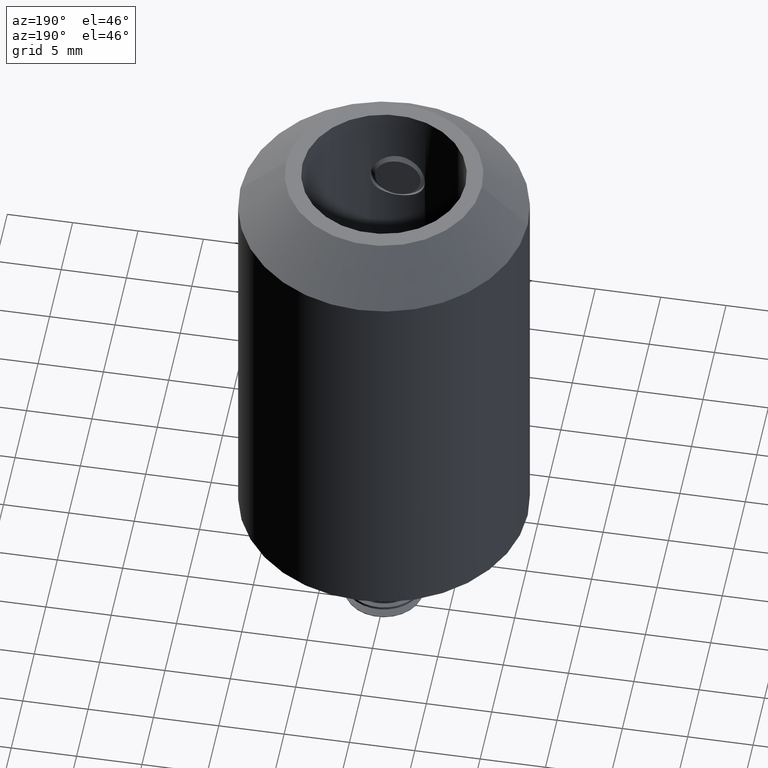
[diagram: clean part render]
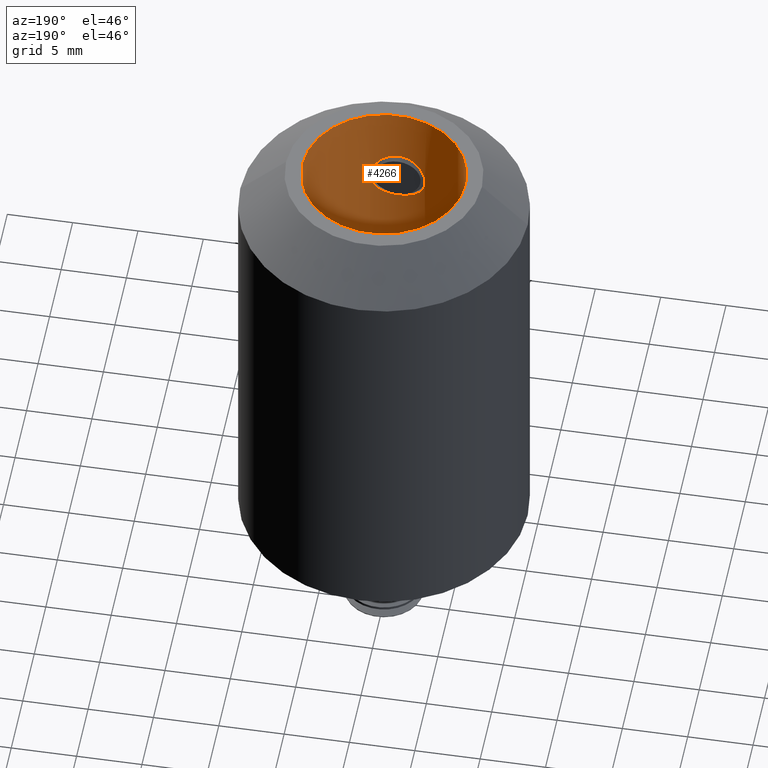
[diagram: same view with one face highlighted and labeled with its STEP entity id]
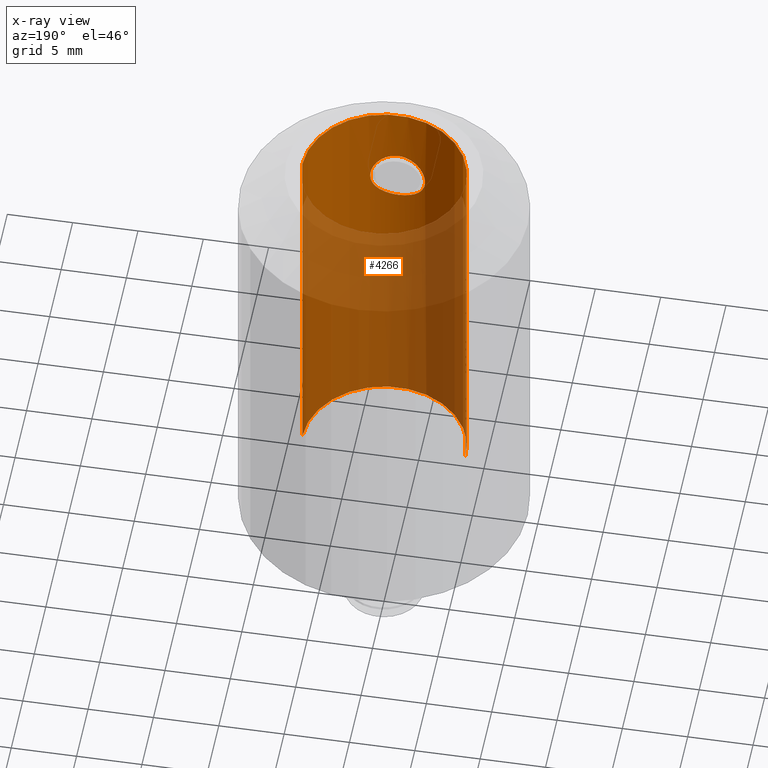
[diagram: x-ray of the same camera — body ghosted, the highlighted face saturated]
A machine part, auxiliary view. The second image highlights one B-rep face of the part: STEP entity #4266.
The next image is the same camera in x-ray: the body ghosted, the highlighted face saturated — about 68% of this face is hidden behind the body in this view.
In plain terms, the highlighted cylindrical surface (partial cylindrical patch) has radius 6.25 mm, axis along (-0, -0, -1).
Its self-contained STEP definition (entity closure, byte-faithful):
#78 = VECTOR ( 'NONE', #8248, 1000.000000000000000 ) ;
#108 = CARTESIAN_POINT ( 'NONE',  ( -6.249941087457022704, -0.02713675213675394507, 17.91659154647436125 ) ) ;
#117 = EDGE_CURVE ( 'NONE', #7957, #18415, #3743, .T. ) ;
#215 = CARTESIAN_POINT ( 'NONE',  ( -6.250000000000000000, -2.266668275202088932E-15, 21.69941239316240456 ) ) ;
#299 = B_SPLINE_CURVE_WITH_KNOTS ( 'NONE', 3,
 ( #8580, #17197, #10429, #20383 ),
 .UNSPECIFIED., .F., .F.,
 ( 4, 4 ),
 ( 0.000000000000000000, 0.0001316155542375974867 ),
 .UNSPECIFIED. ) ;
#320 = B_SPLINE_CURVE_WITH_KNOTS ( 'NONE', 3,
 ( #18417, #8474, #6759, #20200 ),
 .UNSPECIFIED., .F., .F.,
 ( 4, 4 ),
 ( 0.0002498041689422562982, 0.0003613808375801251700 ),
 .UNSPECIFIED. ) ;
#348 = CARTESIAN_POINT ( 'NONE',  ( -6.250000000000000000, 0.000000000000000000, 0.000000000000000000 ) ) ;
#399 = CARTESIAN_POINT ( 'NONE',  ( -6.249999999999998224, -3.650712002666034461E-16, 14.51068119843388970 ) ) ;
#447 = CARTESIAN_POINT ( 'NONE',  ( -6.250000000000000000, -2.266668275202088932E-15, 0.000000000000000000 ) ) ;
#474 = ORIENTED_EDGE ( 'NONE', *, *, #1488, .T. ) ;
#504 = CARTESIAN_POINT ( 'NONE',  ( -6.250000000000000000, 0.000000000000000000, 0.000000000000000000 ) ) ;
#556 = EDGE_CURVE ( 'NONE', #8063, #12401, #3022, .T. ) ;
#621 = CARTESIAN_POINT ( 'NONE',  ( -6.250000000000000000, -2.559876786532332216E-15, 0.000000000000000000 ) ) ;
#646 = VECTOR ( 'NONE', #19002, 1000.000000000000000 ) ;
#647 = ORIENTED_EDGE ( 'NONE', *, *, #19522, .T. ) ;
#735 = AXIS2_PLACEMENT_3D ( 'NONE', #1777, #10003, #16842 ) ;
#752 = CARTESIAN_POINT ( 'NONE',  ( 1.283154409619683634, -6.117951371905980373, 30.16797572121374316 ) ) ;
#768 = ORIENTED_EDGE ( 'NONE', *, *, #18448, .F. ) ;
#771 = CARTESIAN_POINT ( 'NONE',  ( -6.250000000000000000, -2.031294470235149874E-15, 20.28830128205128602 ) ) ;
#786 = VECTOR ( 'NONE', #16347, 1000.000000000000000 ) ;
#822 = CARTESIAN_POINT ( 'NONE',  ( 1.679134496625105388, -6.023525129769473629, 29.79063298823878014 ) ) ;
#833 = ORIENTED_EDGE ( 'NONE', *, *, #1642, .T. ) ;
#849 = VERTEX_POINT ( 'NONE', #6445 ) ;
#867 = CARTESIAN_POINT ( 'NONE',  ( -6.249999999999998224, -3.650712002666034461E-16, 14.51068119843388970 ) ) ;
#915 = VECTOR ( 'NONE', #19245, 1000.000000000000000 ) ;
#945 = VECTOR ( 'NONE', #2682, 1000.000000000000000 ) ;
#977 = CARTESIAN_POINT ( 'NONE',  ( -6.249999999999999112, -0.01874949122127342674, 16.38059750729106412 ) ) ;
#1006 = CARTESIAN_POINT ( 'NONE',  ( -6.250000000000001776, -4.963613070910199987E-16, 10.28032501539279586 ) ) ;
#1028 = VERTEX_POINT ( 'NONE', #17471 ) ;
#1063 = CARTESIAN_POINT ( 'NONE',  ( -6.250000000000000000, 6.407740612628619586E-12, 24.76120711282812081 ) ) ;
#1067 = ORIENTED_EDGE ( 'NONE', *, *, #11978, .F. ) ;
#1077 = ORIENTED_EDGE ( 'NONE', *, *, #21206, .T. ) ;
#1115 = VERTEX_POINT ( 'NONE', #9085 ) ;
#1151 = B_SPLINE_CURVE_WITH_KNOTS ( 'NONE', 3,
 ( #6509, #6288, #20094, #4667 ),
 .UNSPECIFIED., .F., .F.,
 ( 4, 4 ),
 ( 0.0006085833851632783302, 0.0007389834457091191576 ),
 .UNSPECIFIED. ) ;
#1224 = ORIENTED_EDGE ( 'NONE', *, *, #20566, .T. ) ;
#1265 = DIRECTION ( 'NONE',  ( 0.000000000000000000, 0.000000000000000000, 1.000000000000000000 ) ) ;
#1299 = VERTEX_POINT ( 'NONE', #16624 ) ;
#1312 = CARTESIAN_POINT ( 'NONE',  ( -6.250000000000000000, -0.009247728742926933712, 23.31127304138054868 ) ) ;
#1351 = DIRECTION ( 'NONE',  ( -0.000000000000000000, -0.000000000000000000, -1.000000000000000000 ) ) ;
#1371 = CARTESIAN_POINT ( 'NONE',  ( -6.250000000000000000, -1.942524920933333049E-15, 18.80934829059829383 ) ) ;
#1383 = VECTOR ( 'NONE', #8362, 1000.000000000000000 ) ;
#1397 = CARTESIAN_POINT ( 'NONE',  ( -1.389530664248857628, -6.094381485851283031, 26.91959552000053790 ) ) ;
#1411 = EDGE_CURVE ( 'NONE', #9058, #19912, #7722, .T. ) ;
#1468 = CARTESIAN_POINT ( 'NONE',  ( -6.250000000000000000, -4.206158092992778180E-13, 14.79426683218754235 ) ) ;
#1488 = EDGE_CURVE ( 'NONE', #6384, #5884, #16204, .T. ) ;
#1520 = ORIENTED_EDGE ( 'NONE', *, *, #11545, .F. ) ;
#1611 = CARTESIAN_POINT ( 'NONE',  ( -6.249941087457022704, -0.02713675213675362588, 14.66018129006410398 ) ) ;
#1641 = B_SPLINE_CURVE_WITH_KNOTS ( 'NONE', 3,
 ( #12127, #5381, #8798, #10513 ),
 .UNSPECIFIED., .F., .F.,
 ( 4, 4 ),
 ( 0.000000000000000000, 0.0001370445804128096496 ),
 .UNSPECIFIED. ) ;
#1642 = EDGE_CURVE ( 'NONE', #19912, #2317, #9151, .T. ) ;
#1643 = VERTEX_POINT ( 'NONE', #16226 ) ;
#1730 = EDGE_LOOP ( 'NONE', ( #16747, #5443, #2215, #16729, #14328, #833, #1067, #1077, #15503, #9437, #10175, #10506, #13694, #12344, #15625, #7263, #9112, #10553, #21851, #2907, #19128, #15333, #11833, #3174, #2177, #17838, #21165, #12815, #13670, #1840, #18570, #6623, #11304, #13397, #16043, #768, #474, #13451, #8349, #18410, #647, #7110, #9084, #13492, #14574, #3400, #5780, #4946, #1520, #3608, #12853, #5785, #12676, #9108, #4041, #2925, #13518, #20733, #7739, #1224, #4658, #17568, #3137 ) ) ;
#1755 = CARTESIAN_POINT ( 'NONE',  ( -6.250000000000000000, -2.266668275202088932E-15, 22.13360042735043720 ) ) ;
#1776 = CARTESIAN_POINT ( 'NONE',  ( -6.250000000000000000, -0.01763766002864426696, 9.506392982924907642 ) ) ;
#1777 = CARTESIAN_POINT ( 'NONE',  ( 0.000000000000000000, 0.000000000000000000, 5.499999999999998224 ) ) ;
#1809 = EDGE_CURVE ( 'NONE', #4010, #3440, #12775, .T. ) ;
#1819 = CARTESIAN_POINT ( 'NONE',  ( -6.250000000000000000, -4.204135801831208538E-13, 16.42247196039267720 ) ) ;
#1840 = ORIENTED_EDGE ( 'NONE', *, *, #21550, .T. ) ;
#1871 = ORIENTED_EDGE ( 'NONE', *, *, #117, .F. ) ;
#2022 = VECTOR ( 'NONE', #18878, 1000.000000000000000 ) ;
#2151 = CARTESIAN_POINT ( 'NONE',  ( -6.250000000000000000, -1.280788280683425470E-15, 12.37793803418803407 ) ) ;
#2153 = CARTESIAN_POINT ( 'NONE',  ( -6.250000000000000000, 0.000000000000000000, 0.000000000000000000 ) ) ;
#2177 = ORIENTED_EDGE ( 'NONE', *, *, #21735, .T. ) ;
#2215 = ORIENTED_EDGE ( 'NONE', *, *, #15102, .T. ) ;
#2234 = CARTESIAN_POINT ( 'NONE',  ( -6.249999999999998224, -0.01873701217901987959, 14.55798311715569682 ) ) ;
#2275 = CARTESIAN_POINT ( 'NONE',  ( -6.250000000000000000, 0.000000000000000000, 5.499999999999998224 ) ) ;
#2292 = CARTESIAN_POINT ( 'NONE',  ( -6.249985271916317586, -0.01356837606837855807, 24.64820212339743932 ) ) ;
#2317 = VERTEX_POINT ( 'NONE', #3494 ) ;
#2381 = CARTESIAN_POINT ( 'NONE',  ( -6.250000000000000000, -1.361487870957804294E-15, 0.000000000000000000 ) ) ;
#2428 = EDGE_CURVE ( 'NONE', #17449, #12034, #19895, .T. ) ;
#2440 = CARTESIAN_POINT ( 'NONE',  ( 1.281697500500012632, -6.118258615967614666, 26.83090112562079455 ) ) ;
#2441 = CARTESIAN_POINT ( 'NONE',  ( -6.249943101731514794, -0.02667283895925359402, 16.23718278503525880 ) ) ;
#2458 = CARTESIAN_POINT ( 'NONE',  ( -6.250000000000000000, -1.152917720331509549E-15, 15.30872556765992698 ) ) ;
#2487 = EDGE_CURVE ( 'NONE', #12399, #11754, #8846, .T. ) ;
#2532 = CARTESIAN_POINT ( 'NONE',  ( -6.250000000000000000, 0.000000000000000000, 0.000000000000000000 ) ) ;
#2537 = VECTOR ( 'NONE', #5648, 1000.000000000000000 ) ;
#2583 = CARTESIAN_POINT ( 'NONE',  ( -6.250000000000000000, 0.000000000000000000, 0.000000000000000000 ) ) ;
#2606 = VECTOR ( 'NONE', #1351, 1000.000000000000000 ) ;
#2626 = CARTESIAN_POINT ( 'NONE',  ( -6.249941087457022704, -0.02713675213675320608, 10.40946347489316359 ) ) ;
#2632 = CARTESIAN_POINT ( 'NONE',  ( -6.249999999999998224, -0.01763766002864461738, 16.99613657266850453 ) ) ;
#2682 = DIRECTION ( 'NONE',  ( -0.000000000000000000, -0.000000000000000000, -1.000000000000000000 ) ) ;
#2798 = CARTESIAN_POINT ( 'NONE',  ( -1.991178804980828332, -5.924589297797766996, 27.81891842917154634 ) ) ;
#2818 = LINE ( 'NONE', #5009, #4136 ) ;
#2870 = CARTESIAN_POINT ( 'NONE',  ( -0.5470025092208135042, -6.227485096039450774, 26.46782871189566677 ) ) ;
#2907 = ORIENTED_EDGE ( 'NONE', *, *, #11818, .F. ) ;
#2925 = ORIENTED_EDGE ( 'NONE', *, *, #4108, .F. ) ;
#3019 = CARTESIAN_POINT ( 'NONE',  ( -4.681114982632936812E-15, -6.250000000000000000, 26.40000000000000568 ) ) ;
#3022 = LINE ( 'NONE', #3732, #646 ) ;
#3035 = CARTESIAN_POINT ( 'NONE',  ( -6.250000000000000000, -2.031294470235149874E-15, 20.38327991452992194 ) ) ;
#3095 = CARTESIAN_POINT ( 'NONE',  ( -1.820502482735359751, -5.979507314787017691, 29.55562087771018298 ) ) ;
#3137 = ORIENTED_EDGE ( 'NONE', *, *, #21116, .F. ) ;
#3141 = CARTESIAN_POINT ( 'NONE',  ( 6.250000000000000000, 7.654042494670957606E-16, 35.00000000000000000 ) ) ;
#3174 = ORIENTED_EDGE ( 'NONE', *, *, #5834, .T. ) ;
#3177 = VERTEX_POINT ( 'NONE', #867 ) ;
#3183 = VERTEX_POINT ( 'NONE', #3141 ) ;
#3352 = CARTESIAN_POINT ( 'NONE',  ( 6.250000000000000000, 7.654042494670957606E-16, 0.000000000000000000 ) ) ;
#3400 = ORIENTED_EDGE ( 'NONE', *, *, #14368, .T. ) ;
#3440 = VERTEX_POINT ( 'NONE', #4909 ) ;
#3453 = CARTESIAN_POINT ( 'NONE',  ( -0.2769699878207707577, -6.245347119848571715, 30.58627021255417588 ) ) ;
#3482 = CARTESIAN_POINT ( 'NONE',  ( -6.249987420524911741, -0.01257866499286665329, 21.04769291354087812 ) ) ;
#3494 = CARTESIAN_POINT ( 'NONE',  ( -6.250000000000000000, -5.396777249806576637E-13, 9.723829541258805165 ) ) ;
#3608 = ORIENTED_EDGE ( 'NONE', *, *, #5303, .T. ) ;
#3676 = B_SPLINE_CURVE_WITH_KNOTS ( 'NONE', 3,
 ( #16668, #13506, #21765, #5071 ),
 .UNSPECIFIED., .F., .F.,
 ( 4, 4 ),
 ( 0.0003203089328097921337, 0.0004341580018001389490 ),
 .UNSPECIFIED. ) ;
#3732 = CARTESIAN_POINT ( 'NONE',  ( -6.250000000000000000, 0.000000000000000000, 0.000000000000000000 ) ) ;
#3743 = B_SPLINE_CURVE_WITH_KNOTS ( 'NONE', 3,
 ( #3019, #14847, #18219, #2870, #4721, #19710, #4582, #16379, #1397, #16529, #6412, #2798, #8139, #19931, #11534, #21633, #7909, #21405, #11250, #12994, #3095, #14914, #6491, #18293, #8215, #9538, #21329, #15127, #18660, #3453, #6634, #21770 ),
 .UNSPECIFIED., .F., .F.,
 ( 4, 2, 2, 2, 2, 2, 2, 2, 2, 2, 2, 2, 2, 2, 2, 4 ),
 ( 1.156100791101205053E-18, 0.0004133772126065348991, 0.0008267544252130689308, 0.001240131637819602691, 0.001653508850426136994, 0.002480263275639197577, 0.002893640488245732313, 0.003307017700852267050, 0.003720394913458801786, 0.004133772126065336089, 0.004547149338671870392, 0.004960526551278404694, 0.005373903763884938997, 0.005787280976491473300, 0.006200658189098008470, 0.006614035401704542773 ),
 .UNSPECIFIED. ) ;
#3785 = VECTOR ( 'NONE', #11748, 1000.000000000000000 ) ;
#3870 = EDGE_CURVE ( 'NONE', #10320, #1028, #1641, .T. ) ;
#4000 = CARTESIAN_POINT ( 'NONE',  ( -6.249987215373157490, -0.01267316380663488160, 24.68655066500394213 ) ) ;
#4001 = CARTESIAN_POINT ( 'NONE',  ( 1.991316365880859918, -5.924544185841607913, 27.81925910369733757 ) ) ;
#4003 = CARTESIAN_POINT ( 'NONE',  ( -6.250000000000000000, -2.031294470235149874E-15, 19.79983974358975019 ) ) ;
#4010 = VERTEX_POINT ( 'NONE', #11619 ) ;
#4030 = VECTOR ( 'NONE', #1265, 1000.000000000000000 ) ;
#4041 = ORIENTED_EDGE ( 'NONE', *, *, #13833, .T. ) ;
#4108 = EDGE_CURVE ( 'NONE', #13218, #16264, #12209, .T. ) ;
#4136 = VECTOR ( 'NONE', #18294, 1000.000000000000000 ) ;
#4144 = CARTESIAN_POINT ( 'NONE',  ( 1.992013863949607888, -5.924313930899341329, 29.17894508561565559 ) ) ;
#4174 = CARTESIAN_POINT ( 'NONE',  ( -6.250000000000000000, -2.266668275202088932E-15, 22.22857905982906956 ) ) ;
#4217 = CARTESIAN_POINT ( 'NONE',  ( 1.388283807668770686, -6.094680465868980157, 30.08160507440587139 ) ) ;
#4230 = EDGE_CURVE ( 'NONE', #4779, #13197, #6646, .T. ) ;
#4266 = ADVANCED_FACE ( 'NONE', ( #18524, #11692 ), #15106, .F. ) ;
#4352 = LINE ( 'NONE', #15830, #21005 ) ;
#4403 = CARTESIAN_POINT ( 'NONE',  ( -6.250000000000000000, -0.01763766002864251836, 10.32049554702747152 ) ) ;
#4500 = CARTESIAN_POINT ( 'NONE',  ( -6.249999999999998224, -0.01847626381544652252, 10.49809395117142508 ) ) ;
#4532 = LINE ( 'NONE', #6802, #7424 ) ;
#4550 = LINE ( 'NONE', #20028, #10112 ) ;
#4582 = CARTESIAN_POINT ( 'NONE',  ( -1.055134711992556706, -6.161379976940708936, 26.67916379490898393 ) ) ;
#4658 = ORIENTED_EDGE ( 'NONE', *, *, #9623, .F. ) ;
#4667 = CARTESIAN_POINT ( 'NONE',  ( -6.249941087457022704, -0.02713675213675333445, 11.71202757745726331 ) ) ;
#4721 = CARTESIAN_POINT ( 'NONE',  ( -0.6809573174596500467, -6.214112147208842529, 26.50871496874487221 ) ) ;
#4766 = EDGE_CURVE ( 'NONE', #15368, #14835, #4352, .T. ) ;
#4779 = VERTEX_POINT ( 'NONE', #771 ) ;
#4909 = CARTESIAN_POINT ( 'NONE',  ( -6.250000000000000000, -1.942524920933333049E-15, 19.48776709401709795 ) ) ;
#4946 = ORIENTED_EDGE ( 'NONE', *, *, #17718, .T. ) ;
#4966 = CARTESIAN_POINT ( 'NONE',  ( -6.250000000000000000, 4.404129174523895018E-12, 21.11881288291180780 ) ) ;
#5009 = CARTESIAN_POINT ( 'NONE',  ( -6.250000000000000000, -2.266668275202088932E-15, 0.000000000000000000 ) ) ;
#5071 = CARTESIAN_POINT ( 'NONE',  ( -6.249985271916317586, -0.01356837606837855807, 24.64820212339743932 ) ) ;
#5107 = EDGE_LOOP ( 'NONE', ( #1871, #7141 ) ) ;
#5114 = EDGE_CURVE ( 'NONE', #20667, #12776, #16285, .T. ) ;
#5194 = EDGE_CURVE ( 'NONE', #4779, #5884, #7315, .T. ) ;
#5303 = EDGE_CURVE ( 'NONE', #1299, #12776, #2818, .T. ) ;
#5316 = CARTESIAN_POINT ( 'NONE',  ( -6.249943906154056705, -0.02648757015918927829, 9.550765008672152945 ) ) ;
#5381 = CARTESIAN_POINT ( 'NONE',  ( -6.249945055681250139, -0.02622281934493954705, 17.96272777242339203 ) ) ;
#5387 = CARTESIAN_POINT ( 'NONE',  ( -6.249941087457022704, -0.02713675213675312281, 9.595360910790597941 ) ) ;
#5400 = LINE ( 'NONE', #504, #915 ) ;
#5443 = ORIENTED_EDGE ( 'NONE', *, *, #14534, .T. ) ;
#5479 = EDGE_CURVE ( 'NONE', #12575, #19817, #17085, .T. ) ;
#5500 = CIRCLE ( 'NONE', #735, 6.250000000000000000 ) ;
#5571 = VECTOR ( 'NONE', #18879, 1000.000000000000000 ) ;
#5581 = LINE ( 'NONE', #17011, #15893 ) ;
#5623 = CARTESIAN_POINT ( 'NONE',  ( -6.249943101731514794, -0.02667283895925342749, 14.60897765683013283 ) ) ;
#5643 = CARTESIAN_POINT ( 'NONE',  ( -6.249985271916317586, -0.01356837606837819725, 21.01124131944445139 ) ) ;
#5648 = DIRECTION ( 'NONE',  ( -0.000000000000000000, -0.000000000000000000, -1.000000000000000000 ) ) ;
#5748 = CARTESIAN_POINT ( 'NONE',  ( 1.677601154600719013, -6.023902963499859098, 27.20781212300785867 ) ) ;
#5779 = CARTESIAN_POINT ( 'NONE',  ( -6.250000000000000000, -3.662496348544709915E-14, 23.27535668402721214 ) ) ;
#5780 = ORIENTED_EDGE ( 'NONE', *, *, #21706, .F. ) ;
#5785 = ORIENTED_EDGE ( 'NONE', *, *, #14671, .T. ) ;
#5818 = CARTESIAN_POINT ( 'NONE',  ( 0.6807774074885170057, -6.214132139573580460, 26.50865275162994905 ) ) ;
#5834 = EDGE_CURVE ( 'NONE', #10327, #12854, #16553, .T. ) ;
#5881 = EDGE_CURVE ( 'NONE', #14880, #17189, #9960, .T. ) ;
#5884 = VERTEX_POINT ( 'NONE', #4003 ) ;
#6171 = CARTESIAN_POINT ( 'NONE',  ( -6.250000000000000000, -2.556980709523919149E-16, 9.466222451290228435 ) ) ;
#6251 = CARTESIAN_POINT ( 'NONE',  ( -6.250000000000000000, -3.662496348544709915E-14, 23.27535668402721214 ) ) ;
#6266 = CARTESIAN_POINT ( 'NONE',  ( -6.250000000000000000, -5.396777249806576637E-13, 9.723829541258805165 ) ) ;
#6288 = CARTESIAN_POINT ( 'NONE',  ( -6.250000000000000000, -0.01763766002864407614, 11.62305964959157123 ) ) ;
#6292 = VERTEX_POINT ( 'NONE', #215 ) ;
#6332 = DIRECTION ( 'NONE',  ( 0.000000000000000000, 0.000000000000000000, 1.000000000000000000 ) ) ;
#6373 = VECTOR ( 'NONE', #6570, 1000.000000000000000 ) ;
#6380 = LINE ( 'NONE', #15006, #15116 ) ;
#6384 = VERTEX_POINT ( 'NONE', #17841 ) ;
#6412 = CARTESIAN_POINT ( 'NONE',  ( -1.833634788654213477, -5.975992719688997035, 27.44054541392978663 ) ) ;
#6445 = CARTESIAN_POINT ( 'NONE',  ( -6.249985271916317586, -0.01356837606837855807, 24.64820212339743932 ) ) ;
#6491 = CARTESIAN_POINT ( 'NONE',  ( -1.581024548620139969, -6.047541939429930125, 29.88889684463689989 ) ) ;
#6509 = CARTESIAN_POINT ( 'NONE',  ( -6.250000000000000000, 3.324604317973128831E-17, 11.58288911795689735 ) ) ;
#6546 = LINE ( 'NONE', #2583, #20796 ) ;
#6570 = DIRECTION ( 'NONE',  ( -0.000000000000000000, -0.000000000000000000, -1.000000000000000000 ) ) ;
#6612 = VERTEX_POINT ( 'NONE', #15119 ) ;
#6623 = ORIENTED_EDGE ( 'NONE', *, *, #12944, .F. ) ;
#6634 = CARTESIAN_POINT ( 'NONE',  ( -0.1377617610087926991, -6.250000000000001776, 30.60000000000001208 ) ) ;
#6646 = LINE ( 'NONE', #15281, #5571 ) ;
#6759 = CARTESIAN_POINT ( 'NONE',  ( -6.249987163406165891, -0.01269710130100408507, 20.97384982570186196 ) ) ;
#6802 = CARTESIAN_POINT ( 'NONE',  ( -6.250000000000000000, 0.000000000000000000, 0.000000000000000000 ) ) ;
#7110 = ORIENTED_EDGE ( 'NONE', *, *, #21685, .F. ) ;
#7121 = CARTESIAN_POINT ( 'NONE',  ( -6.249985271916317586, -0.01356837606837843317, 23.38570713141026047 ) ) ;
#7122 = VERTEX_POINT ( 'NONE', #17362 ) ;
#7123 = DIRECTION ( 'NONE',  ( 0.000000000000000000, 0.000000000000000000, 1.000000000000000000 ) ) ;
#7141 = ORIENTED_EDGE ( 'NONE', *, *, #8406, .F. ) ;
#7163 = DIRECTION ( 'NONE',  ( -0.000000000000000000, -0.000000000000000000, -1.000000000000000000 ) ) ;
#7256 = CARTESIAN_POINT ( 'NONE',  ( -6.250000000000000000, -0.01847626381545804108, 17.17373497681246519 ) ) ;
#7263 = ORIENTED_EDGE ( 'NONE', *, *, #17515, .T. ) ;
#7315 = LINE ( 'NONE', #7684, #11557 ) ;
#7424 = VECTOR ( 'NONE', #7163, 1000.000000000000000 ) ;
#7443 = EDGE_CURVE ( 'NONE', #1115, #10508, #299, .T. ) ;
#7509 = B_SPLINE_CURVE_WITH_KNOTS ( 'NONE', 3,
 ( #16475, #9787, #21579, #18387 ),
 .UNSPECIFIED., .F., .F.,
 ( 4, 4 ),
 ( 0.000000000000000000, 0.0001492847478538085189 ),
 .UNSPECIFIED. ) ;
#7542 = CARTESIAN_POINT ( 'NONE',  ( 0.2754539012555117239, -6.249999999999999112, 30.59999999999999432 ) ) ;
#7633 = CARTESIAN_POINT ( 'NONE',  ( -6.249941087457022704, -0.02713675213675378894, 16.28838641826922995 ) ) ;
#7684 = CARTESIAN_POINT ( 'NONE',  ( -6.250000000000000000, 0.000000000000000000, 0.000000000000000000 ) ) ;
#7722 = B_SPLINE_CURVE_WITH_KNOTS ( 'NONE', 3,
 ( #11919, #1776, #5316, #5387 ),
 .UNSPECIFIED., .F., .F.,
 ( 4, 4 ),
 ( 0.0006085833851632583809, 0.0007389834457091056050 ),
 .UNSPECIFIED. ) ;
#7724 = EDGE_CURVE ( 'NONE', #8063, #12399, #13720, .T. ) ;
#7739 = ORIENTED_EDGE ( 'NONE', *, *, #12325, .T. ) ;
#7784 = DIRECTION ( 'NONE',  ( 0.000000000000000000, 0.000000000000000000, 1.000000000000000000 ) ) ;
#7826 = VECTOR ( 'NONE', #19197, 1000.000000000000000 ) ;
#7873 = EDGE_CURVE ( 'NONE', #12575, #6612, #21721, .T. ) ;
#7909 = CARTESIAN_POINT ( 'NONE',  ( -2.086156781590802645, -5.891627256037642368, 28.77737804672436894 ) ) ;
#7957 = VERTEX_POINT ( 'NONE', #20476 ) ;
#8063 = VERTEX_POINT ( 'NONE', #21137 ) ;
#8139 = CARTESIAN_POINT ( 'NONE',  ( -2.032047115787772640, -5.910508611355727027, 27.95231474863934196 ) ) ;
#8152 = VERTEX_POINT ( 'NONE', #1063 ) ;
#8211 = CARTESIAN_POINT ( 'NONE',  ( -6.250000000000000000, -2.559876786532332216E-15, 25.68851495726496381 ) ) ;
#8215 = CARTESIAN_POINT ( 'NONE',  ( -1.282716395517583097, -6.118045133621313525, 30.16832026092160746 ) ) ;
#8219 = CARTESIAN_POINT ( 'NONE',  ( -6.249941087457022704, -0.02713675213675370568, 15.45774739583333535 ) ) ;
#8248 = DIRECTION ( 'NONE',  ( -0.000000000000000000, -0.000000000000000000, -1.000000000000000000 ) ) ;
#8349 = ORIENTED_EDGE ( 'NONE', *, *, #4230, .T. ) ;
#8362 = DIRECTION ( 'NONE',  ( -0.000000000000000000, -0.000000000000000000, -1.000000000000000000 ) ) ;
#8406 = EDGE_CURVE ( 'NONE', #18415, #7957, #10018, .T. ) ;
#8474 = CARTESIAN_POINT ( 'NONE',  ( -6.250000000000000000, -0.009247728742931015516, 20.93680722941473249 ) ) ;
#8544 = B_SPLINE_CURVE_WITH_KNOTS ( 'NONE', 3,
 ( #1611, #21774, #16678, #1468 ),
 .UNSPECIFIED., .F., .F.,
 ( 4, 4 ),
 ( 0.000000000000000000, 0.0001370445804128000815 ),
 .UNSPECIFIED. ) ;
#8553 = VERTEX_POINT ( 'NONE', #1755 ) ;
#8580 = CARTESIAN_POINT ( 'NONE',  ( -6.249941087457022704, -0.02713675213675333445, 11.71202757745726331 ) ) ;
#8590 = DIRECTION ( 'NONE',  ( 0.000000000000000000, 0.000000000000000000, 1.000000000000000000 ) ) ;
#8647 = EDGE_CURVE ( 'NONE', #18711, #13197, #5400, .T. ) ;
#8764 = CARTESIAN_POINT ( 'NONE',  ( -6.250000000000000000, -2.130823964906883901E-15, 20.60037393162393471 ) ) ;
#8789 = LINE ( 'NONE', #15064, #1383 ) ;
#8798 = CARTESIAN_POINT ( 'NONE',  ( -6.250000000000000888, -0.01874949122127799600, 18.00880263549619897 ) ) ;
#8846 = B_SPLINE_CURVE_WITH_KNOTS ( 'NONE', 3,
 ( #10762, #20837, #7256, #12510 ),
 .UNSPECIFIED., .F., .F.,
 ( 4, 4 ),
 ( 0.000000000000000000, 0.0001316155542375947490 ),
 .UNSPECIFIED. ) ;
#8861 = VERTEX_POINT ( 'NONE', #4174 ) ;
#8909 = VECTOR ( 'NONE', #21109, 1000.000000000000000 ) ;
#9035 = EDGE_CURVE ( 'NONE', #19506, #11754, #19925, .T. ) ;
#9037 = CARTESIAN_POINT ( 'NONE',  ( 0.000000000000000000, 0.000000000000000000, 35.00000000000000000 ) ) ;
#9058 = VERTEX_POINT ( 'NONE', #6171 ) ;
#9084 = ORIENTED_EDGE ( 'NONE', *, *, #21382, .T. ) ;
#9085 = CARTESIAN_POINT ( 'NONE',  ( -6.249941087457022704, -0.02713675213675333445, 11.71202757745726331 ) ) ;
#9108 = ORIENTED_EDGE ( 'NONE', *, *, #7873, .T. ) ;
#9111 = CARTESIAN_POINT ( 'NONE',  ( -6.250000000000000000, 0.000000000000000000, 0.000000000000000000 ) ) ;
#9112 = ORIENTED_EDGE ( 'NONE', *, *, #11191, .F. ) ;
#9117 = CARTESIAN_POINT ( 'NONE',  ( -3.232964290594066295E-15, -6.250000000000000000, 30.59999999999999432 ) ) ;
#9151 = B_SPLINE_CURVE_WITH_KNOTS ( 'NONE', 3,
 ( #14623, #21475, #18066, #6266 ),
 .UNSPECIFIED., .F., .F.,
 ( 4, 4 ),
 ( 0.000000000000000000, 0.0001316155542376013898 ),
 .UNSPECIFIED. ) ;
#9174 = LINE ( 'NONE', #2532, #18121 ) ;
#9249 = VECTOR ( 'NONE', #7123, 1000.000000000000000 ) ;
#9262 = CARTESIAN_POINT ( 'NONE',  ( 1.054796682869352464, -6.161431727484913523, 26.67899931547247760 ) ) ;
#9278 = CARTESIAN_POINT ( 'NONE',  ( -6.250000000000000000, -1.942524920933333049E-15, 18.90432692307692619 ) ) ;
#9402 = CARTESIAN_POINT ( 'NONE',  ( 2.099981086174654621, -5.886644157591924831, 28.36133460682143337 ) ) ;
#9437 = ORIENTED_EDGE ( 'NONE', *, *, #20960, .F. ) ;
#9455 = VERTEX_POINT ( 'NONE', #14160 ) ;
#9468 = EDGE_CURVE ( 'NONE', #10327, #18558, #20717, .T. ) ;
#9518 = VECTOR ( 'NONE', #14758, 1000.000000000000000 ) ;
#9538 = CARTESIAN_POINT ( 'NONE',  ( -1.055817361523854192, -6.161256958402389294, 30.32041301452059656 ) ) ;
#9605 = CARTESIAN_POINT ( 'NONE',  ( -6.249941087457022704, -0.02713675213675320608, 10.40946347489316359 ) ) ;
#9623 = EDGE_CURVE ( 'NONE', #7122, #8152, #16999, .T. ) ;
#9697 = EDGE_CURVE ( 'NONE', #4010, #14835, #17789, .T. ) ;
#9787 = CARTESIAN_POINT ( 'NONE',  ( -6.249946148398608514, -0.02597115256177571357, 15.50798380961689382 ) ) ;
#9838 = VECTOR ( 'NONE', #15676, 1000.000000000000000 ) ;
#9844 = CARTESIAN_POINT ( 'NONE',  ( -6.250000000000000000, -2.395787619641094577E-15, 0.000000000000000000 ) ) ;
#9908 = EDGE_CURVE ( 'NONE', #3183, #11881, #20177, .T. ) ;
#9960 = LINE ( 'NONE', #15813, #7826 ) ;
#10003 = DIRECTION ( 'NONE',  ( -0.000000000000000000, -0.000000000000000000, -1.000000000000000000 ) ) ;
#10018 = B_SPLINE_CURVE_WITH_KNOTS ( 'NONE', 3,
 ( #9117, #7542, #14276, #16018, #21042, #752, #4217, #822, #10828, #4144, #15952, #11106, #12578, #9402, #19271, #17715, #4001, #12787, #5748, #14204, #2440, #9262, #21184, #5818, #21113, #17643, #12651, #14345 ),
 .UNSPECIFIED., .F., .F.,
 ( 4, 2, 2, 2, 2, 2, 2, 2, 2, 2, 2, 2, 2, 4 ),
 ( 0.006614035401704542773, 0.007440580918172907954, 0.007853853676407090978, 0.008267126434641274002, 0.009093671951109631377, 0.009506944709343810931, 0.009920217467577988751, 0.01033349022581216831, 0.01074676298404634786, 0.01157330850051469656, 0.01198658125874886918, 0.01239985401698304526, 0.01281312677521721961, 0.01322639953345139396 ),
 .UNSPECIFIED. ) ;
#10112 = VECTOR ( 'NONE', #11698, 1000.000000000000000 ) ;
#10175 = ORIENTED_EDGE ( 'NONE', *, *, #15548, .T. ) ;
#10320 = VERTEX_POINT ( 'NONE', #108 ) ;
#10327 = VERTEX_POINT ( 'NONE', #18568 ) ;
#10395 = B_SPLINE_CURVE_WITH_KNOTS ( 'NONE', 3,
 ( #7633, #21132, #977, #19517 ),
 .UNSPECIFIED., .F., .F.,
 ( 4, 4 ),
 ( 0.000000000000000000, 0.0001370445804128089719 ),
 .UNSPECIFIED. ) ;
#10404 = VECTOR ( 'NONE', #17363, 1000.000000000000000 ) ;
#10429 = CARTESIAN_POINT ( 'NONE',  ( -6.249999999999998224, -0.01847626381545403040, 11.80065805373553545 ) ) ;
#10473 = CARTESIAN_POINT ( 'NONE',  ( -6.249941087457022704, -0.02713675213675394507, 17.91659154647436125 ) ) ;
#10506 = ORIENTED_EDGE ( 'NONE', *, *, #7443, .T. ) ;
#10508 = VERTEX_POINT ( 'NONE', #18254 ) ;
#10513 = CARTESIAN_POINT ( 'NONE',  ( -6.250000000000000000, -4.202026689792545330E-13, 18.05067708859780495 ) ) ;
#10517 = CARTESIAN_POINT ( 'NONE',  ( -6.250000000000000000, 0.000000000000000000, 35.00000000000000000 ) ) ;
#10532 = VERTEX_POINT ( 'NONE', #21671 ) ;
#10553 = ORIENTED_EDGE ( 'NONE', *, *, #14772, .T. ) ;
#10623 = CARTESIAN_POINT ( 'NONE',  ( -6.250000000000000000, -2.366197769873822171E-15, 0.000000000000000000 ) ) ;
#10762 = CARTESIAN_POINT ( 'NONE',  ( -6.249941087457022704, -0.02713675213675386527, 17.08510450053419305 ) ) ;
#10770 = CARTESIAN_POINT ( 'NONE',  ( -6.249941087457022704, -0.02713675213675362588, 14.66018129006410398 ) ) ;
#10828 = CARTESIAN_POINT ( 'NONE',  ( 1.832844012027486924, -5.976256518225836700, 29.56161456346993077 ) ) ;
#10850 = LINE ( 'NONE', #3352, #19260 ) ;
#10865 = VERTEX_POINT ( 'NONE', #14422 ) ;
#10888 = CARTESIAN_POINT ( 'NONE',  ( -6.249941087457022704, -0.02713675213675370568, 15.45774739583333535 ) ) ;
#10924 = VERTEX_POINT ( 'NONE', #17862 ) ;
#11046 = EDGE_CURVE ( 'NONE', #13218, #17189, #13282, .T. ) ;
#11106 = CARTESIAN_POINT ( 'NONE',  ( 2.086020354233161900, -5.891675392019029012, 28.77823449408860768 ) ) ;
#11191 = EDGE_CURVE ( 'NONE', #3177, #13852, #8789, .T. ) ;
#11202 = CARTESIAN_POINT ( 'NONE',  ( -6.250000000000000000, 0.000000000000000000, 0.000000000000000000 ) ) ;
#11221 = AXIS2_PLACEMENT_3D ( 'NONE', #15353, #12118, #12046 ) ;
#11250 = CARTESIAN_POINT ( 'NONE',  ( -1.991998142174518316, -5.924320343051245885, 29.17904070399740490 ) ) ;
#11304 = ORIENTED_EDGE ( 'NONE', *, *, #4766, .T. ) ;
#11397 = VERTEX_POINT ( 'NONE', #19407 ) ;
#11449 = LINE ( 'NONE', #2381, #9838 ) ;
#11513 = EDGE_CURVE ( 'NONE', #13268, #9455, #18659, .T. ) ;
#11534 = CARTESIAN_POINT ( 'NONE',  ( -2.099930759189656104, -5.886662111245453133, 28.36083144935797407 ) ) ;
#11545 = EDGE_CURVE ( 'NONE', #1299, #8861, #5581, .T. ) ;
#11557 = VECTOR ( 'NONE', #14556, 1000.000000000000000 ) ;
#11619 = CARTESIAN_POINT ( 'NONE',  ( -6.250000000000000000, -1.942524920933333049E-15, 19.39278846153846558 ) ) ;
#11656 = VECTOR ( 'NONE', #19117, 1000.000000000000000 ) ;
#11692 = FACE_OUTER_BOUND ( 'NONE', #1730, .T. ) ;
#11698 = DIRECTION ( 'NONE',  ( -0.000000000000000000, -0.000000000000000000, -1.000000000000000000 ) ) ;
#11748 = DIRECTION ( 'NONE',  ( 0.000000000000000000, 0.000000000000000000, 1.000000000000000000 ) ) ;
#11754 = VERTEX_POINT ( 'NONE', #18386 ) ;
#11796 = B_SPLINE_CURVE_WITH_KNOTS ( 'NONE', 3,
 ( #2292, #4000, #12503, #15811 ),
 .UNSPECIFIED., .F., .F.,
 ( 4, 4 ),
 ( 0.000000000000000000, 0.0001135698750731767992 ),
 .UNSPECIFIED. ) ;
#11818 = EDGE_CURVE ( 'NONE', #14869, #13647, #4550, .T. ) ;
#11832 = VERTEX_POINT ( 'NONE', #14868 ) ;
#11833 = ORIENTED_EDGE ( 'NONE', *, *, #9468, .F. ) ;
#11881 = VERTEX_POINT ( 'NONE', #10517 ) ;
#11890 = EDGE_CURVE ( 'NONE', #14899, #16849, #6380, .T. ) ;
#11919 = CARTESIAN_POINT ( 'NONE',  ( -6.250000000000000000, -2.556980709523919149E-16, 9.466222451290228435 ) ) ;
#11947 = CARTESIAN_POINT ( 'NONE',  ( -6.249943101731514794, -0.02667283895925389586, 17.86538791324039011 ) ) ;
#11978 = EDGE_CURVE ( 'NONE', #11832, #2317, #4532, .T. ) ;
#12034 = VERTEX_POINT ( 'NONE', #12419 ) ;
#12046 = DIRECTION ( 'NONE',  ( -1.000000000000000000, 0.000000000000000000, 0.000000000000000000 ) ) ;
#12076 = LINE ( 'NONE', #11202, #945 ) ;
#12077 = CARTESIAN_POINT ( 'NONE',  ( -6.249985271916317586, -0.01356837606837843317, 23.38570713141026047 ) ) ;
#12118 = DIRECTION ( 'NONE',  ( -0.000000000000000000, -0.000000000000000000, -1.000000000000000000 ) ) ;
#12127 = CARTESIAN_POINT ( 'NONE',  ( -6.249941087457022704, -0.02713675213675394507, 17.91659154647436125 ) ) ;
#12209 = LINE ( 'NONE', #13150, #6373 ) ;
#12241 = CARTESIAN_POINT ( 'NONE',  ( -6.250000000000000000, 0.000000000000000000, 0.000000000000000000 ) ) ;
#12325 = EDGE_CURVE ( 'NONE', #14880, #849, #3676, .T. ) ;
#12344 = ORIENTED_EDGE ( 'NONE', *, *, #11890, .T. ) ;
#12357 = CARTESIAN_POINT ( 'NONE',  ( -6.249941087457022704, -0.02713675213675378894, 16.28838641826922995 ) ) ;
#12399 = VERTEX_POINT ( 'NONE', #13358 ) ;
#12401 = VERTEX_POINT ( 'NONE', #1819 ) ;
#12419 = CARTESIAN_POINT ( 'NONE',  ( -6.250000000000000000, 4.404129174523895018E-12, 21.11881288291180780 ) ) ;
#12451 = CARTESIAN_POINT ( 'NONE',  ( -6.250000000000007994, -0.009182073190707589275, 23.45820538507413033 ) ) ;
#12457 = DIRECTION ( 'NONE',  ( -0.000000000000000000, -0.000000000000000000, -1.000000000000000000 ) ) ;
#12503 = CARTESIAN_POINT ( 'NONE',  ( -6.250000000000009770, -0.009547924563101722537, 24.72448105206742142 ) ) ;
#12510 = CARTESIAN_POINT ( 'NONE',  ( -6.250000000000000000, -5.417446971301949701E-13, 17.21357313100239494 ) ) ;
#12575 = VERTEX_POINT ( 'NONE', #5779 ) ;
#12576 = DIRECTION ( 'NONE',  ( -1.000000000000000000, 0.000000000000000000, 0.000000000000000000 ) ) ;
#12578 = CARTESIAN_POINT ( 'NONE',  ( 2.100018874674550950, -5.886630676916387195, 28.63809192433770434 ) ) ;
#12597 = CARTESIAN_POINT ( 'NONE',  ( -6.250000000000000000, -1.280788280683425470E-15, 12.28295940170940170 ) ) ;
#12651 = CARTESIAN_POINT ( 'NONE',  ( 0.1398138339219174853, -6.250000000000001776, 26.40000000000001279 ) ) ;
#12676 = ORIENTED_EDGE ( 'NONE', *, *, #5479, .F. ) ;
#12775 = LINE ( 'NONE', #13293, #3785 ) ;
#12776 = VERTEX_POINT ( 'NONE', #16566 ) ;
#12787 = CARTESIAN_POINT ( 'NONE',  ( 1.833429633678348436, -5.976060114691638780, 27.44003211084209326 ) ) ;
#12815 = ORIENTED_EDGE ( 'NONE', *, *, #2487, .T. ) ;
#12853 = ORIENTED_EDGE ( 'NONE', *, *, #5114, .F. ) ;
#12854 = VERTEX_POINT ( 'NONE', #15169 ) ;
#12856 = LINE ( 'NONE', #348, #20006 ) ;
#12944 = EDGE_CURVE ( 'NONE', #15368, #1028, #16653, .T. ) ;
#12994 = CARTESIAN_POINT ( 'NONE',  ( -1.885657171165436408, -5.959020486485167467, 29.43458542089228303 ) ) ;
#13150 = CARTESIAN_POINT ( 'NONE',  ( -6.250000000000000000, 0.000000000000000000, 0.000000000000000000 ) ) ;
#13197 = VERTEX_POINT ( 'NONE', #3035 ) ;
#13218 = VERTEX_POINT ( 'NONE', #20090 ) ;
#13268 = VERTEX_POINT ( 'NONE', #17410 ) ;
#13282 = LINE ( 'NONE', #9844, #4030 ) ;
#13293 = CARTESIAN_POINT ( 'NONE',  ( -6.250000000000000000, -1.942524920933333049E-15, 0.000000000000000000 ) ) ;
#13358 = CARTESIAN_POINT ( 'NONE',  ( -6.249941087457022704, -0.02713675213675386527, 17.08510450053419305 ) ) ;
#13368 = AXIS2_PLACEMENT_3D ( 'NONE', #9037, #21040, #12576 ) ;
#13390 = CARTESIAN_POINT ( 'NONE',  ( -6.250000000000006217, -0.009182073190710548713, 21.08373957310829283 ) ) ;
#13397 = ORIENTED_EDGE ( 'NONE', *, *, #9697, .F. ) ;
#13451 = ORIENTED_EDGE ( 'NONE', *, *, #5194, .F. ) ;
#13483 = VERTEX_POINT ( 'NONE', #8211 ) ;
#13492 = ORIENTED_EDGE ( 'NONE', *, *, #21850, .T. ) ;
#13506 = CARTESIAN_POINT ( 'NONE',  ( -6.250000000000000000, -0.009631595882840694386, 24.57085252118570295 ) ) ;
#13518 = ORIENTED_EDGE ( 'NONE', *, *, #11046, .T. ) ;
#13553 = CARTESIAN_POINT ( 'NONE',  ( -6.249999999999998224, -5.403520690857904936E-13, 10.53793210536136904 ) ) ;
#13574 = VERTEX_POINT ( 'NONE', #5643 ) ;
#13585 = EDGE_CURVE ( 'NONE', #9058, #15838, #17441, .T. ) ;
#13647 = VERTEX_POINT ( 'NONE', #20646 ) ;
#13670 = ORIENTED_EDGE ( 'NONE', *, *, #9035, .F. ) ;
#13682 = CARTESIAN_POINT ( 'NONE',  ( -6.250000000000000000, -2.031294470235149874E-15, 0.000000000000000000 ) ) ;
#13694 = ORIENTED_EDGE ( 'NONE', *, *, #15005, .F. ) ;
#13720 = B_SPLINE_CURVE_WITH_KNOTS ( 'NONE', 3,
 ( #17693, #2632, #21160, #14536 ),
 .UNSPECIFIED., .F., .F.,
 ( 4, 4 ),
 ( 0.0006085833851632853776, 0.0007389834457091419258 ),
 .UNSPECIFIED. ) ;
#13734 = LINE ( 'NONE', #10623, #9249 ) ;
#13833 = EDGE_CURVE ( 'NONE', #6612, #16264, #15849, .T. ) ;
#13852 = VERTEX_POINT ( 'NONE', #17448 ) ;
#13922 = B_SPLINE_CURVE_WITH_KNOTS ( 'NONE', 3,
 ( #1006, #4403, #21153, #2626 ),
 .UNSPECIFIED., .F., .F.,
 ( 4, 4 ),
 ( 0.0006085833851633105310, 0.0007389834457091715245 ),
 .UNSPECIFIED. ) ;
#13945 = DIRECTION ( 'NONE',  ( -0.000000000000000000, -0.000000000000000000, -1.000000000000000000 ) ) ;
#14068 = CARTESIAN_POINT ( 'NONE',  ( -6.250000000000000000, 0.000000000000000000, 0.000000000000000000 ) ) ;
#14160 = CARTESIAN_POINT ( 'NONE',  ( -6.249999999999998224, -5.403520690857904936E-13, 10.53793210536136904 ) ) ;
#14204 = CARTESIAN_POINT ( 'NONE',  ( 1.388929532163305280, -6.094521137183761539, 26.91905137954284655 ) ) ;
#14238 = EDGE_CURVE ( 'NONE', #15336, #18558, #7509, .T. ) ;
#14276 = CARTESIAN_POINT ( 'NONE',  ( 0.5535094440402353877, -6.230685183296444052, 30.54425393108256159 ) ) ;
#14328 = ORIENTED_EDGE ( 'NONE', *, *, #1411, .T. ) ;
#14345 = CARTESIAN_POINT ( 'NONE',  ( -4.681114982632936812E-15, -6.250000000000000000, 26.40000000000000568 ) ) ;
#14368 = EDGE_CURVE ( 'NONE', #17449, #6292, #21381, .T. ) ;
#14422 = CARTESIAN_POINT ( 'NONE',  ( -6.250000000000000000, -1.361487870957804294E-15, 12.97494658119657984 ) ) ;
#14512 = LINE ( 'NONE', #16479, #2606 ) ;
#14534 = EDGE_CURVE ( 'NONE', #3183, #10532, #10850, .T. ) ;
#14536 = CARTESIAN_POINT ( 'NONE',  ( -6.249941087457022704, -0.02713675213675386527, 17.08510450053419305 ) ) ;
#14556 = DIRECTION ( 'NONE',  ( -0.000000000000000000, -0.000000000000000000, -1.000000000000000000 ) ) ;
#14574 = ORIENTED_EDGE ( 'NONE', *, *, #2428, .F. ) ;
#14623 = CARTESIAN_POINT ( 'NONE',  ( -6.249941087457022704, -0.02713675213675312281, 9.595360910790597941 ) ) ;
#14671 = EDGE_CURVE ( 'NONE', #20667, #19817, #13734, .T. ) ;
#14683 = DIRECTION ( 'NONE',  ( -0.000000000000000000, -0.000000000000000000, -1.000000000000000000 ) ) ;
#14739 = CARTESIAN_POINT ( 'NONE',  ( -6.250000000000000000, 0.000000000000000000, 0.000000000000000000 ) ) ;
#14758 = DIRECTION ( 'NONE',  ( 0.000000000000000000, 0.000000000000000000, 1.000000000000000000 ) ) ;
#14772 = EDGE_CURVE ( 'NONE', #3177, #10924, #21376, .T. ) ;
#14833 = CARTESIAN_POINT ( 'NONE',  ( -6.249987163406165891, -0.01269710130100431059, 23.34831563766767104 ) ) ;
#14835 = VERTEX_POINT ( 'NONE', #9278 ) ;
#14847 = CARTESIAN_POINT ( 'NONE',  ( -0.1398491717611065888, -6.250000000000000888, 26.40000000000000568 ) ) ;
#14851 = EDGE_CURVE ( 'NONE', #7122, #13483, #17395, .T. ) ;
#14868 = CARTESIAN_POINT ( 'NONE',  ( -6.250000000000001776, -4.963613070910199987E-16, 10.28032501539279586 ) ) ;
#14869 = VERTEX_POINT ( 'NONE', #2458 ) ;
#14880 = VERTEX_POINT ( 'NONE', #21202 ) ;
#14899 = VERTEX_POINT ( 'NONE', #12597 ) ;
#14914 = CARTESIAN_POINT ( 'NONE',  ( -1.668831644596322938, -6.023598422806003327, 29.78201625149495158 ) ) ;
#15005 = EDGE_CURVE ( 'NONE', #14899, #10508, #14512, .T. ) ;
#15006 = CARTESIAN_POINT ( 'NONE',  ( -6.250000000000000000, -1.280788280683425470E-15, 0.000000000000000000 ) ) ;
#15059 = CARTESIAN_POINT ( 'NONE',  ( -6.250000000000000000, 0.000000000000000000, 0.000000000000000000 ) ) ;
#15064 = CARTESIAN_POINT ( 'NONE',  ( -6.250000000000000000, 0.000000000000000000, 0.000000000000000000 ) ) ;
#15102 = EDGE_CURVE ( 'NONE', #10532, #15838, #5500, .T. ) ;
#15106 = CYLINDRICAL_SURFACE ( 'NONE', #11221, 6.250000000000000000 ) ;
#15116 = VECTOR ( 'NONE', #8590, 1000.000000000000000 ) ;
#15119 = CARTESIAN_POINT ( 'NONE',  ( -6.249985271916317586, -0.01356837606837843317, 23.38570713141026047 ) ) ;
#15127 = CARTESIAN_POINT ( 'NONE',  ( -0.6800321976848793248, -6.214202731284300008, 30.49155991312958136 ) ) ;
#15155 = CARTESIAN_POINT ( 'NONE',  ( -6.249985271916317586, -0.01356837606837819725, 21.01124131944445139 ) ) ;
#15167 = VECTOR ( 'NONE', #15222, 1000.000000000000000 ) ;
#15169 = CARTESIAN_POINT ( 'NONE',  ( -6.249941087457022704, -0.02713675213675378894, 16.28838641826922995 ) ) ;
#15178 = VECTOR ( 'NONE', #12457, 1000.000000000000000 ) ;
#15222 = DIRECTION ( 'NONE',  ( 0.000000000000000000, 0.000000000000000000, 1.000000000000000000 ) ) ;
#15281 = CARTESIAN_POINT ( 'NONE',  ( -6.250000000000000000, -2.031294470235149874E-15, 0.000000000000000000 ) ) ;
#15333 = ORIENTED_EDGE ( 'NONE', *, *, #14238, .T. ) ;
#15336 = VERTEX_POINT ( 'NONE', #10888 ) ;
#15353 = CARTESIAN_POINT ( 'NONE',  ( 0.000000000000000000, 0.000000000000000000, 0.000000000000000000 ) ) ;
#15368 = VERTEX_POINT ( 'NONE', #1371 ) ;
#15448 = CARTESIAN_POINT ( 'NONE',  ( -6.249999999999998224, -3.724880325109989135E-14, 20.90089087206140306 ) ) ;
#15503 = ORIENTED_EDGE ( 'NONE', *, *, #11513, .T. ) ;
#15532 = DIRECTION ( 'NONE',  ( -0.000000000000000000, -0.000000000000000000, -1.000000000000000000 ) ) ;
#15548 = EDGE_CURVE ( 'NONE', #1643, #1115, #1151, .T. ) ;
#15625 = ORIENTED_EDGE ( 'NONE', *, *, #20482, .F. ) ;
#15633 = CARTESIAN_POINT ( 'NONE',  ( -6.250000000000000000, 0.000000000000000000, 0.000000000000000000 ) ) ;
#15676 = DIRECTION ( 'NONE',  ( 0.000000000000000000, 0.000000000000000000, 1.000000000000000000 ) ) ;
#15740 = CARTESIAN_POINT ( 'NONE',  ( -6.250000000000000000, -0.01873701217902744645, 16.18618824536082101 ) ) ;
#15811 = CARTESIAN_POINT ( 'NONE',  ( -6.250000000000000000, 6.407740612628619586E-12, 24.76120711282812081 ) ) ;
#15813 = CARTESIAN_POINT ( 'NONE',  ( -6.250000000000000000, 0.000000000000000000, 0.000000000000000000 ) ) ;
#15830 = CARTESIAN_POINT ( 'NONE',  ( -6.250000000000000000, -1.942524920933333049E-15, 0.000000000000000000 ) ) ;
#15838 = VERTEX_POINT ( 'NONE', #2275 ) ;
#15849 = B_SPLINE_CURVE_WITH_KNOTS ( 'NONE', 3,
 ( #7121, #18921, #12451, #19287 ),
 .UNSPECIFIED., .F., .F.,
 ( 4, 4 ),
 ( 0.000000000000000000, 0.0001083318546686517315 ),
 .UNSPECIFIED. ) ;
#15893 = VECTOR ( 'NONE', #17224, 1000.000000000000000 ) ;
#15950 = DIRECTION ( 'NONE',  ( -0.000000000000000000, -0.000000000000000000, -1.000000000000000000 ) ) ;
#15952 = CARTESIAN_POINT ( 'NONE',  ( 2.031951277812363621, -5.910540909916313090, 29.04778586744502888 ) ) ;
#15953 = CARTESIAN_POINT ( 'NONE',  ( -6.250000000000000000, -1.503906997850010252E-15, 16.13888632663901745 ) ) ;
#15984 = CARTESIAN_POINT ( 'NONE',  ( -3.232964290594066295E-15, -6.250000000000000000, 30.59999999999999432 ) ) ;
#15985 = CARTESIAN_POINT ( 'NONE',  ( -6.249941087457022704, -0.02713675213675312281, 9.595360910790597941 ) ) ;
#16018 = CARTESIAN_POINT ( 'NONE',  ( 0.9336400211197708465, -6.181192761147428882, 30.38604162753917137 ) ) ;
#16043 = ORIENTED_EDGE ( 'NONE', *, *, #1809, .T. ) ;
#16204 = LINE ( 'NONE', #13682, #15167 ) ;
#16224 = VECTOR ( 'NONE', #14683, 1000.000000000000000 ) ;
#16226 = CARTESIAN_POINT ( 'NONE',  ( -6.250000000000000000, 3.324604317973128831E-17, 11.58288911795689735 ) ) ;
#16264 = VERTEX_POINT ( 'NONE', #17529 ) ;
#16285 = LINE ( 'NONE', #9111, #8909 ) ;
#16334 = VECTOR ( 'NONE', #7784, 1000.000000000000000 ) ;
#16347 = DIRECTION ( 'NONE',  ( -0.000000000000000000, -0.000000000000000000, -1.000000000000000000 ) ) ;
#16363 = CARTESIAN_POINT ( 'NONE',  ( -6.250000000000000000, 0.000000000000000000, 0.000000000000000000 ) ) ;
#16379 = CARTESIAN_POINT ( 'NONE',  ( -1.282672282118496154, -6.118060501284898756, 26.83161588268564302 ) ) ;
#16385 = CARTESIAN_POINT ( 'NONE',  ( -6.250000000000000000, -2.366197769873822171E-15, 22.97483974358974734 ) ) ;
#16475 = CARTESIAN_POINT ( 'NONE',  ( -6.249941087457022704, -0.02713675213675370568, 15.45774739583333535 ) ) ;
#16479 = CARTESIAN_POINT ( 'NONE',  ( -6.250000000000000000, 0.000000000000000000, 0.000000000000000000 ) ) ;
#16529 = CARTESIAN_POINT ( 'NONE',  ( -1.677726462269866436, -6.023857448985531882, 27.20805221972388210 ) ) ;
#16553 = B_SPLINE_CURVE_WITH_KNOTS ( 'NONE', 3,
 ( #15953, #15740, #2441, #12357 ),
 .UNSPECIFIED., .F., .F.,
 ( 4, 4 ),
 ( 0.0004328732615700414655, 0.0005840191481782442719 ),
 .UNSPECIFIED. ) ;
#16566 = CARTESIAN_POINT ( 'NONE',  ( -6.250000000000000000, -2.266668275202088932E-15, 22.75774572649573813 ) ) ;
#16624 = CARTESIAN_POINT ( 'NONE',  ( -6.250000000000000000, -2.266668275202088932E-15, 22.66276709401710221 ) ) ;
#16653 = LINE ( 'NONE', #14068, #19562 ) ;
#16668 = CARTESIAN_POINT ( 'NONE',  ( -6.250000000000000000, -8.597843665307237883E-14, 24.53352954719663614 ) ) ;
#16678 = CARTESIAN_POINT ( 'NONE',  ( -6.249999999999999112, -0.01874949122128290527, 14.75239237908593104 ) ) ;
#16718 = B_SPLINE_CURVE_WITH_KNOTS ( 'NONE', 3,
 ( #17235, #17170, #11947, #10473 ),
 .UNSPECIFIED., .F., .F.,
 ( 4, 4 ),
 ( 0.0004328732615700520907, 0.0005840191481782737622 ),
 .UNSPECIFIED. ) ;
#16729 = ORIENTED_EDGE ( 'NONE', *, *, #13585, .F. ) ;
#16747 = ORIENTED_EDGE ( 'NONE', *, *, #9908, .F. ) ;
#16842 = DIRECTION ( 'NONE',  ( -1.000000000000000000, 0.000000000000000000, 0.000000000000000000 ) ) ;
#16849 = VERTEX_POINT ( 'NONE', #2151 ) ;
#16861 = B_SPLINE_CURVE_WITH_KNOTS ( 'NONE', 3,
 ( #15155, #3482, #13390, #4966 ),
 .UNSPECIFIED., .F., .F.,
 ( 4, 4 ),
 ( 0.000000000000000000, 0.0001083318546686084854 ),
 .UNSPECIFIED. ) ;
#16874 = VECTOR ( 'NONE', #6332, 1000.000000000000000 ) ;
#16999 = LINE ( 'NONE', #14739, #19644 ) ;
#17011 = CARTESIAN_POINT ( 'NONE',  ( -6.250000000000000000, 0.000000000000000000, 0.000000000000000000 ) ) ;
#17085 = LINE ( 'NONE', #15633, #2537 ) ;
#17170 = CARTESIAN_POINT ( 'NONE',  ( -6.250000000000000000, -0.01873701217902130553, 17.81439337356595232 ) ) ;
#17189 = VERTEX_POINT ( 'NONE', #17627 ) ;
#17197 = CARTESIAN_POINT ( 'NONE',  ( -6.249944342028269872, -0.02638718275373420560, 11.75639544814020532 ) ) ;
#17224 = DIRECTION ( 'NONE',  ( -0.000000000000000000, -0.000000000000000000, -1.000000000000000000 ) ) ;
#17235 = CARTESIAN_POINT ( 'NONE',  ( -6.249999999999998224, -2.002597645545979577E-15, 17.76709145484414876 ) ) ;
#17362 = CARTESIAN_POINT ( 'NONE',  ( -6.250000000000000000, -2.559876786532332216E-15, 25.59353632478633145 ) ) ;
#17363 = DIRECTION ( 'NONE',  ( -0.000000000000000000, -0.000000000000000000, -1.000000000000000000 ) ) ;
#17395 = LINE ( 'NONE', #621, #16334 ) ;
#17410 = CARTESIAN_POINT ( 'NONE',  ( -6.249941087457022704, -0.02713675213675320608, 10.40946347489316359 ) ) ;
#17441 = LINE ( 'NONE', #12241, #18218 ) ;
#17448 = CARTESIAN_POINT ( 'NONE',  ( -6.250000000000001776, -1.361487870957804294E-15, 13.69407051282051135 ) ) ;
#17449 = VERTEX_POINT ( 'NONE', #21764 ) ;
#17471 = CARTESIAN_POINT ( 'NONE',  ( -6.250000000000000000, -4.202026689792545330E-13, 18.05067708859780495 ) ) ;
#17515 = EDGE_CURVE ( 'NONE', #10865, #13852, #11449, .T. ) ;
#17529 = CARTESIAN_POINT ( 'NONE',  ( -6.250000000000000000, 4.416352071711011386E-12, 23.49327869487765952 ) ) ;
#17568 = ORIENTED_EDGE ( 'NONE', *, *, #14851, .T. ) ;
#17627 = CARTESIAN_POINT ( 'NONE',  ( -6.250000000000000000, -2.395787619641094577E-15, 24.07387820512821008 ) ) ;
#17643 = CARTESIAN_POINT ( 'NONE',  ( 0.2771608814677346544, -6.245313988912636560, 26.41383234201753538 ) ) ;
#17693 = CARTESIAN_POINT ( 'NONE',  ( -6.250000000000000000, -4.260575724689130706E-16, 16.95596604103382532 ) ) ;
#17715 = CARTESIAN_POINT ( 'NONE',  ( 2.032188127562319924, -5.910459894465165398, 27.95285669878814616 ) ) ;
#17718 = EDGE_CURVE ( 'NONE', #8553, #8861, #19546, .T. ) ;
#17789 = LINE ( 'NONE', #18178, #78 ) ;
#17838 = ORIENTED_EDGE ( 'NONE', *, *, #556, .F. ) ;
#17841 = CARTESIAN_POINT ( 'NONE',  ( -6.250000000000000000, -2.031294470235149874E-15, 19.70486111111111782 ) ) ;
#17862 = CARTESIAN_POINT ( 'NONE',  ( -6.249941087457022704, -0.02713675213675362588, 14.66018129006410398 ) ) ;
#18047 = CARTESIAN_POINT ( 'NONE',  ( -6.250000000000000000, -2.266668275202088932E-15, 0.000000000000000000 ) ) ;
#18066 = CARTESIAN_POINT ( 'NONE',  ( -6.249999999999998224, -0.01847626381545633412, 9.683991387068871859 ) ) ;
#18121 = VECTOR ( 'NONE', #21204, 1000.000000000000000 ) ;
#18178 = CARTESIAN_POINT ( 'NONE',  ( -6.250000000000000000, 0.000000000000000000, 0.000000000000000000 ) ) ;
#18208 = CARTESIAN_POINT ( 'NONE',  ( -6.249999999999998224, -2.002597645545979577E-15, 17.76709145484414876 ) ) ;
#18218 = VECTOR ( 'NONE', #13945, 1000.000000000000000 ) ;
#18219 = CARTESIAN_POINT ( 'NONE',  ( -0.2771663449979559490, -6.245315138861119664, 26.41382869675332756 ) ) ;
#18254 = CARTESIAN_POINT ( 'NONE',  ( -6.250000000000000000, -5.394640609197127665E-13, 11.84049620792546698 ) ) ;
#18293 = CARTESIAN_POINT ( 'NONE',  ( -1.387699951769310713, -6.094808526636656509, 30.08207519171539346 ) ) ;
#18294 = DIRECTION ( 'NONE',  ( 0.000000000000000000, 0.000000000000000000, 1.000000000000000000 ) ) ;
#18337 = CARTESIAN_POINT ( 'NONE',  ( -6.250000000000000000, -4.183739248461324986E-14, 15.60445719933126618 ) ) ;
#18386 = CARTESIAN_POINT ( 'NONE',  ( -6.250000000000000000, -5.417446971301949701E-13, 17.21357313100239494 ) ) ;
#18387 = CARTESIAN_POINT ( 'NONE',  ( -6.250000000000000000, -4.183739248461324986E-14, 15.60445719933126618 ) ) ;
#18410 = ORIENTED_EDGE ( 'NONE', *, *, #8647, .F. ) ;
#18415 = VERTEX_POINT ( 'NONE', #15984 ) ;
#18417 = CARTESIAN_POINT ( 'NONE',  ( -6.249999999999998224, -3.724880325109989135E-14, 20.90089087206140306 ) ) ;
#18448 = EDGE_CURVE ( 'NONE', #6384, #3440, #20065, .T. ) ;
#18524 = FACE_BOUND ( 'NONE', #5107, .T. ) ;
#18554 = B_SPLINE_CURVE_WITH_KNOTS ( 'NONE', 3,
 ( #19866, #21712, #20228, #8219 ),
 .UNSPECIFIED., .F., .F.,
 ( 4, 4 ),
 ( 0.0004033329556207923571, 0.0005545384032736206965 ),
 .UNSPECIFIED. ) ;
#18558 = VERTEX_POINT ( 'NONE', #18337 ) ;
#18568 = CARTESIAN_POINT ( 'NONE',  ( -6.250000000000000000, -1.503906997850010252E-15, 16.13888632663901745 ) ) ;
#18570 = ORIENTED_EDGE ( 'NONE', *, *, #3870, .T. ) ;
#18634 = DIRECTION ( 'NONE',  ( -0.000000000000000000, -0.000000000000000000, -1.000000000000000000 ) ) ;
#18659 = B_SPLINE_CURVE_WITH_KNOTS ( 'NONE', 3,
 ( #9605, #21395, #4500, #13553 ),
 .UNSPECIFIED., .F., .F.,
 ( 4, 4 ),
 ( 0.000000000000000000, 0.0001316155542375971072 ),
 .UNSPECIFIED. ) ;
#18660 = CARTESIAN_POINT ( 'NONE',  ( -0.5489401249491113743, -6.227337935327997620, 30.53172353266019456 ) ) ;
#18711 = VERTEX_POINT ( 'NONE', #8764 ) ;
#18878 = DIRECTION ( 'NONE',  ( -0.000000000000000000, -0.000000000000000000, -1.000000000000000000 ) ) ;
#18879 = DIRECTION ( 'NONE',  ( 0.000000000000000000, 0.000000000000000000, 1.000000000000000000 ) ) ;
#18921 = CARTESIAN_POINT ( 'NONE',  ( -6.249987420524911741, -0.01257866499286676085, 23.42215872550670142 ) ) ;
#18973 = LINE ( 'NONE', #19850, #16874 ) ;
#19002 = DIRECTION ( 'NONE',  ( -0.000000000000000000, -0.000000000000000000, -1.000000000000000000 ) ) ;
#19117 = DIRECTION ( 'NONE',  ( 0.000000000000000000, 0.000000000000000000, 1.000000000000000000 ) ) ;
#19128 = ORIENTED_EDGE ( 'NONE', *, *, #20715, .T. ) ;
#19153 = CARTESIAN_POINT ( 'NONE',  ( -6.250000000000000000, 0.000000000000000000, 0.000000000000000000 ) ) ;
#19197 = DIRECTION ( 'NONE',  ( -0.000000000000000000, -0.000000000000000000, -1.000000000000000000 ) ) ;
#19245 = DIRECTION ( 'NONE',  ( -0.000000000000000000, -0.000000000000000000, -1.000000000000000000 ) ) ;
#19260 = VECTOR ( 'NONE', #18634, 1000.000000000000000 ) ;
#19271 = CARTESIAN_POINT ( 'NONE',  ( 2.086417744995437307, -5.891535092253511685, 28.22429114770394776 ) ) ;
#19287 = CARTESIAN_POINT ( 'NONE',  ( -6.250000000000000000, 4.416352071711011386E-12, 23.49327869487765952 ) ) ;
#19317 = DIRECTION ( 'NONE',  ( -0.000000000000000000, -0.000000000000000000, -1.000000000000000000 ) ) ;
#19407 = CARTESIAN_POINT ( 'NONE',  ( -6.250000000000000000, -2.130823964906883901E-15, 20.69535256410257062 ) ) ;
#19464 = LINE ( 'NONE', #15059, #2022 ) ;
#19506 = VERTEX_POINT ( 'NONE', #18208 ) ;
#19517 = CARTESIAN_POINT ( 'NONE',  ( -6.250000000000000000, -4.204135801831208538E-13, 16.42247196039267720 ) ) ;
#19522 = EDGE_CURVE ( 'NONE', #18711, #11397, #18973, .T. ) ;
#19546 = LINE ( 'NONE', #447, #11656 ) ;
#19562 = VECTOR ( 'NONE', #15532, 1000.000000000000000 ) ;
#19644 = VECTOR ( 'NONE', #21438, 1000.000000000000000 ) ;
#19680 = CARTESIAN_POINT ( 'NONE',  ( -6.250000000000000000, 0.000000000000000000, 0.000000000000000000 ) ) ;
#19710 = CARTESIAN_POINT ( 'NONE',  ( -0.9348764159771587590, -6.181011141645032403, 26.61454911738538343 ) ) ;
#19817 = VERTEX_POINT ( 'NONE', #20937 ) ;
#19850 = CARTESIAN_POINT ( 'NONE',  ( -6.250000000000000000, -2.130823964906883901E-15, 0.000000000000000000 ) ) ;
#19866 = CARTESIAN_POINT ( 'NONE',  ( -6.250000000000000000, -1.152917720331509549E-15, 15.30872556765992698 ) ) ;
#19895 = LINE ( 'NONE', #2153, #10404 ) ;
#19912 = VERTEX_POINT ( 'NONE', #15985 ) ;
#19925 = LINE ( 'NONE', #16363, #16224 ) ;
#19931 = CARTESIAN_POINT ( 'NONE',  ( -2.086368221085268537, -5.891552865903615377, 28.22387998735171166 ) ) ;
#20006 = VECTOR ( 'NONE', #19317, 1000.000000000000000 ) ;
#20028 = CARTESIAN_POINT ( 'NONE',  ( -6.250000000000000000, 0.000000000000000000, 0.000000000000000000 ) ) ;
#20065 = LINE ( 'NONE', #19680, #786 ) ;
#20090 = CARTESIAN_POINT ( 'NONE',  ( -6.250000000000000000, -2.395787619641094577E-15, 23.97889957264957417 ) ) ;
#20094 = CARTESIAN_POINT ( 'NONE',  ( -6.249943906154057593, -0.02648757015918964258, 11.66743167533881831 ) ) ;
#20177 = CIRCLE ( 'NONE', #13368, 6.250000000000000000 ) ;
#20200 = CARTESIAN_POINT ( 'NONE',  ( -6.249985271916317586, -0.01356837606837819725, 21.01124131944445139 ) ) ;
#20228 = CARTESIAN_POINT ( 'NONE',  ( -6.249947452229577927, -0.02567086361504802502, 15.40687596471949483 ) ) ;
#20383 = CARTESIAN_POINT ( 'NONE',  ( -6.250000000000000000, -5.394640609197127665E-13, 11.84049620792546698 ) ) ;
#20419 = VERTEX_POINT ( 'NONE', #15448 ) ;
#20476 = CARTESIAN_POINT ( 'NONE',  ( -4.681114982632936812E-15, -6.250000000000000000, 26.40000000000000568 ) ) ;
#20482 = EDGE_CURVE ( 'NONE', #10865, #16849, #6546, .T. ) ;
#20566 = EDGE_CURVE ( 'NONE', #849, #8152, #11796, .T. ) ;
#20646 = CARTESIAN_POINT ( 'NONE',  ( -6.250000000000000000, -4.206158092992778180E-13, 14.79426683218754235 ) ) ;
#20667 = VERTEX_POINT ( 'NONE', #16385 ) ;
#20715 = EDGE_CURVE ( 'NONE', #14869, #15336, #18554, .T. ) ;
#20717 = LINE ( 'NONE', #19153, #15178 ) ;
#20733 = ORIENTED_EDGE ( 'NONE', *, *, #5881, .F. ) ;
#20779 = EDGE_CURVE ( 'NONE', #10924, #13647, #8544, .T. ) ;
#20796 = VECTOR ( 'NONE', #15950, 1000.000000000000000 ) ;
#20837 = CARTESIAN_POINT ( 'NONE',  ( -6.249944342028268984, -0.02638718275373492725, 17.12947237121713329 ) ) ;
#20937 = CARTESIAN_POINT ( 'NONE',  ( -6.250000000000000000, -2.366197769873822171E-15, 23.06981837606837971 ) ) ;
#20960 = EDGE_CURVE ( 'NONE', #1643, #9455, #19464, .T. ) ;
#20996 = DIRECTION ( 'NONE',  ( 0.000000000000000000, 0.000000000000000000, 1.000000000000000000 ) ) ;
#21005 = VECTOR ( 'NONE', #20996, 1000.000000000000000 ) ;
#21040 = DIRECTION ( 'NONE',  ( -0.000000000000000000, -0.000000000000000000, -1.000000000000000000 ) ) ;
#21042 = CARTESIAN_POINT ( 'NONE',  ( 1.056458130331059175, -6.161145222017585077, 30.32003419317944548 ) ) ;
#21109 = DIRECTION ( 'NONE',  ( -0.000000000000000000, -0.000000000000000000, -1.000000000000000000 ) ) ;
#21113 = CARTESIAN_POINT ( 'NONE',  ( 0.5468688652298981934, -6.227495437057021910, 26.46779723067057688 ) ) ;
#21116 = EDGE_CURVE ( 'NONE', #11881, #13483, #12856, .T. ) ;
#21132 = CARTESIAN_POINT ( 'NONE',  ( -6.249945055681250139, -0.02622281934493969971, 16.33452264421826072 ) ) ;
#21137 = CARTESIAN_POINT ( 'NONE',  ( -6.250000000000000000, -4.260575724689130706E-16, 16.95596604103382532 ) ) ;
#21153 = CARTESIAN_POINT ( 'NONE',  ( -6.249943906154057593, -0.02648757015918937890, 10.36486757277471860 ) ) ;
#21160 = CARTESIAN_POINT ( 'NONE',  ( -6.249943906154056705, -0.02648757015919040933, 17.04050859841575161 ) ) ;
#21165 = ORIENTED_EDGE ( 'NONE', *, *, #7724, .T. ) ;
#21184 = CARTESIAN_POINT ( 'NONE',  ( 0.9347243460232056433, -6.181034421808344170, 26.61447298107684034 ) ) ;
#21202 = CARTESIAN_POINT ( 'NONE',  ( -6.250000000000000000, -8.597843665307237883E-14, 24.53352954719663614 ) ) ;
#21204 = DIRECTION ( 'NONE',  ( -0.000000000000000000, -0.000000000000000000, -1.000000000000000000 ) ) ;
#21206 = EDGE_CURVE ( 'NONE', #11832, #13268, #13922, .T. ) ;
#21329 = CARTESIAN_POINT ( 'NONE',  ( -0.9329246632288857866, -6.181295248419109711, 30.38637383628275401 ) ) ;
#21376 = B_SPLINE_CURVE_WITH_KNOTS ( 'NONE', 3,
 ( #399, #2234, #5623, #10770 ),
 .UNSPECIFIED., .F., .F.,
 ( 4, 4 ),
 ( 0.0004328732615700767563, 0.0005840191481783224428 ),
 .UNSPECIFIED. ) ;
#21381 = LINE ( 'NONE', #18047, #9518 ) ;
#21382 = EDGE_CURVE ( 'NONE', #20419, #13574, #320, .T. ) ;
#21395 = CARTESIAN_POINT ( 'NONE',  ( -6.249944342028268984, -0.02638718275373436867, 10.45383134557610560 ) ) ;
#21405 = CARTESIAN_POINT ( 'NONE',  ( -2.032022183795942016, -5.910516702118698618, 29.04760801924651048 ) ) ;
#21438 = DIRECTION ( 'NONE',  ( -0.000000000000000000, -0.000000000000000000, -1.000000000000000000 ) ) ;
#21475 = CARTESIAN_POINT ( 'NONE',  ( -6.249944342028268984, -0.02638718275373428887, 9.639728781473539954 ) ) ;
#21550 = EDGE_CURVE ( 'NONE', #19506, #10320, #16718, .T. ) ;
#21579 = CARTESIAN_POINT ( 'NONE',  ( -6.250000000000000000, -0.01906524041618423357, 15.55796827458538623 ) ) ;
#21633 = CARTESIAN_POINT ( 'NONE',  ( -2.100068717040726618, -5.886612896145843266, 28.63707101292968460 ) ) ;
#21671 = CARTESIAN_POINT ( 'NONE',  ( 6.250000000000000000, 7.654042494670957606E-16, 5.499999999999998224 ) ) ;
#21685 = EDGE_CURVE ( 'NONE', #20419, #11397, #9174, .T. ) ;
#21706 = EDGE_CURVE ( 'NONE', #8553, #6292, #12076, .T. ) ;
#21712 = CARTESIAN_POINT ( 'NONE',  ( -6.250000000000000000, -0.01860986523576161830, 15.35572893338322231 ) ) ;
#21721 = B_SPLINE_CURVE_WITH_KNOTS ( 'NONE', 3,
 ( #6251, #1312, #14833, #12077 ),
 .UNSPECIFIED., .F., .F.,
 ( 4, 4 ),
 ( 0.0002498041689422547803, 0.0003613808375801248448 ),
 .UNSPECIFIED. ) ;
#21735 = EDGE_CURVE ( 'NONE', #12854, #12401, #10395, .T. ) ;
#21764 = CARTESIAN_POINT ( 'NONE',  ( -6.250000000000000000, -2.266668275202088932E-15, 21.60443376068377219 ) ) ;
#21765 = CARTESIAN_POINT ( 'NONE',  ( -6.249986974965366926, -0.01278390256778362717, 24.60938789656007586 ) ) ;
#21770 = CARTESIAN_POINT ( 'NONE',  ( -3.232964290594066295E-15, -6.250000000000000000, 30.59999999999999432 ) ) ;
#21774 = CARTESIAN_POINT ( 'NONE',  ( -6.249945055681250139, -0.02622281934493955399, 14.70631751601313120 ) ) ;
#21850 = EDGE_CURVE ( 'NONE', #13574, #12034, #16861, .T. ) ;
#21851 = ORIENTED_EDGE ( 'NONE', *, *, #20779, .T. ) ;